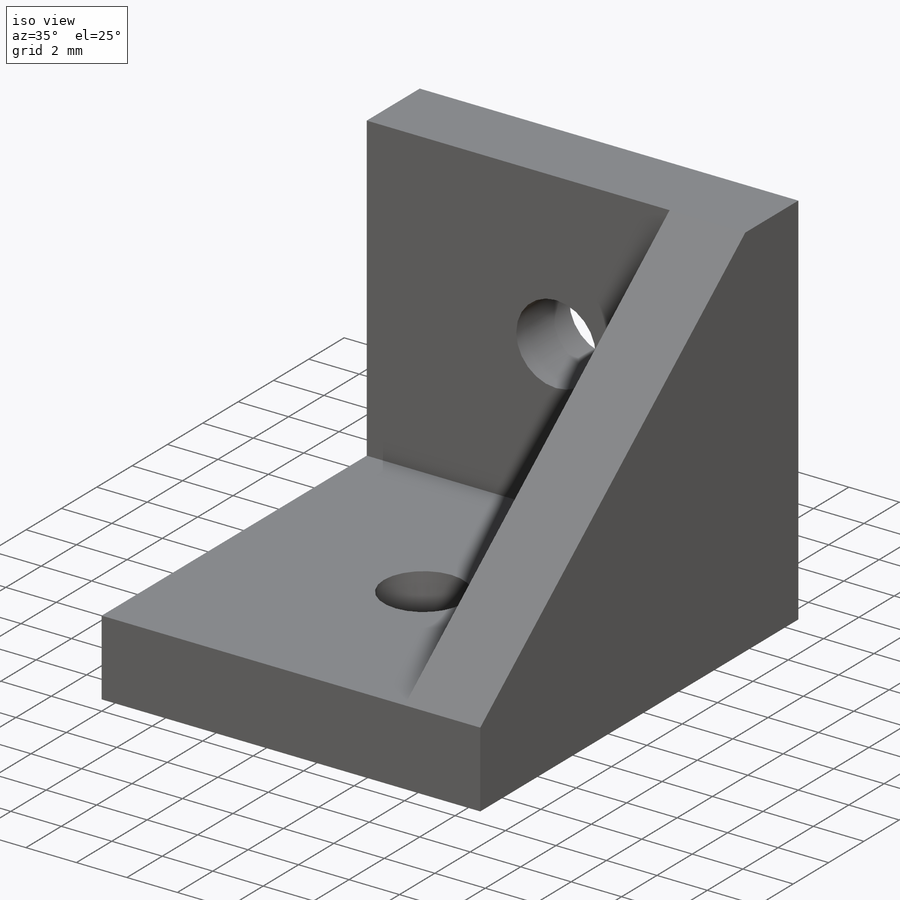
[diagram: iso view]
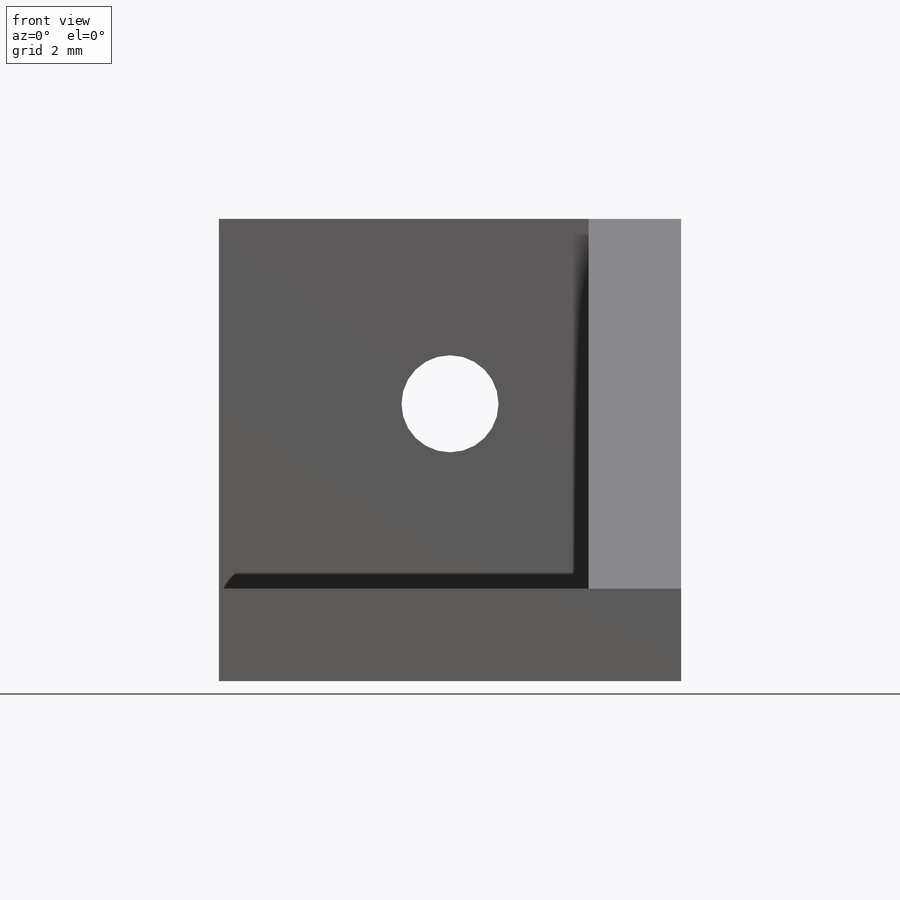
[diagram: front view]
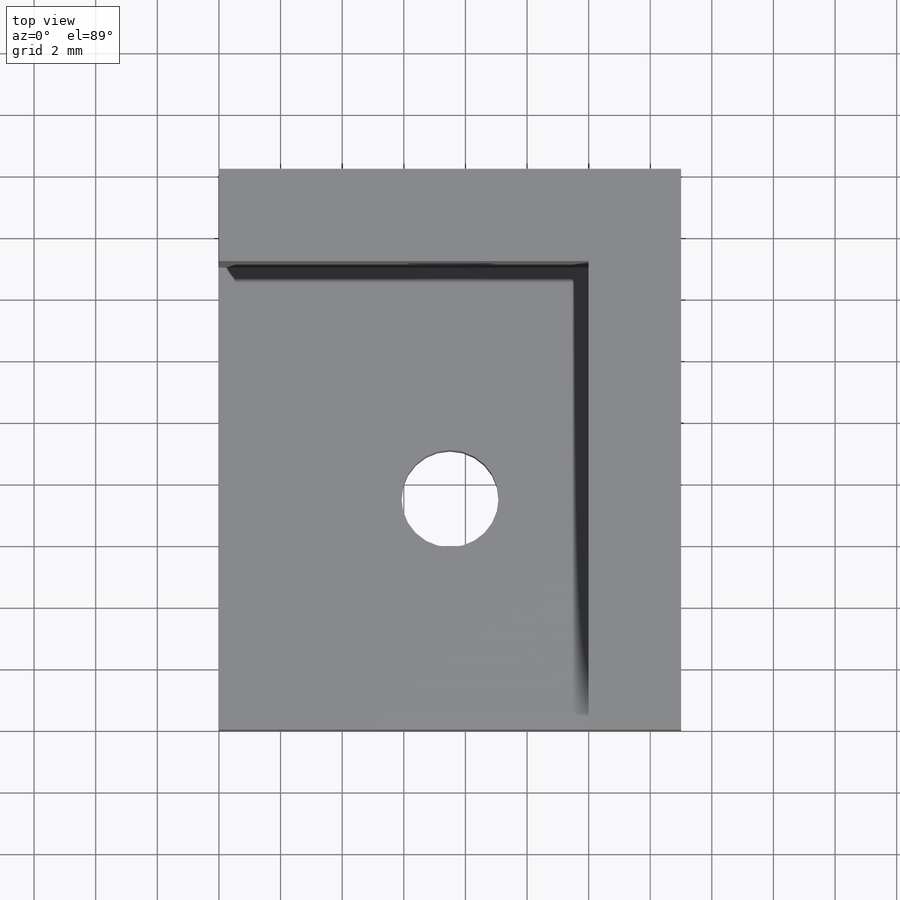
[diagram: top view]
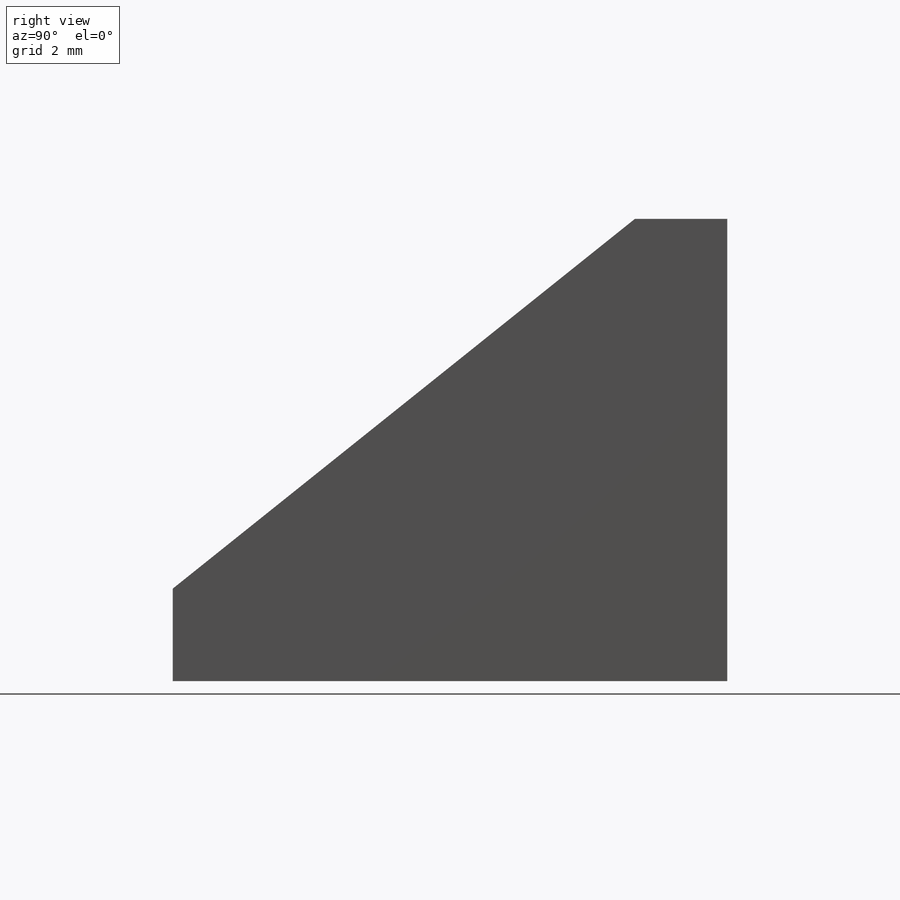
[diagram: right view]
SOLIDWORKS PART (.sldprt)
format: sldprt  version: not decoded by parser v0  size: 172,544 bytes
history: native  units: mm
features: sketch x5, extrude x3, cut_extrude x2, material x1 (+13 scaffold rows collapsed)
feature tree (24):
  scaffold x13  (default folders/planes/origin — collapsed)
  material  "Material <not specified>"
  sketch  "Base Profile Sketch"  dims[D1=~12.00124mm D2=~15.00124mm]
  extrude  "Base Profile Extrude"  Depth=3mm
  sketch  "Back Profile Sketch"  dims[D1=3.0mm]
  extrude  "Back Profile Extrude"  Depth=15mm
  sketch  "Side Profile Sketch"
  extrude  "Side Profile Extrude"  Depth=3mm
  sketch  "Bottom Mounting Hole Sketch"  dims[D1=3.15mm]
  cut_extrude  "Bottom Mounting Hole Cut"  [1 undecoded]
  sketch  "Back Mounting Hole Sketch"  dims[D1=3.15mm]
  cut_extrude  "Back Mounting Hole Cut"  [1 undecoded]
decode coverage: 7 of 10 modeling features carry decoded parameters
note: ~ marks probable driven/reference dimensions
note: 2 parameter values undecoded
note: suppression state not decoded; provenance and decode notes live in map.json
